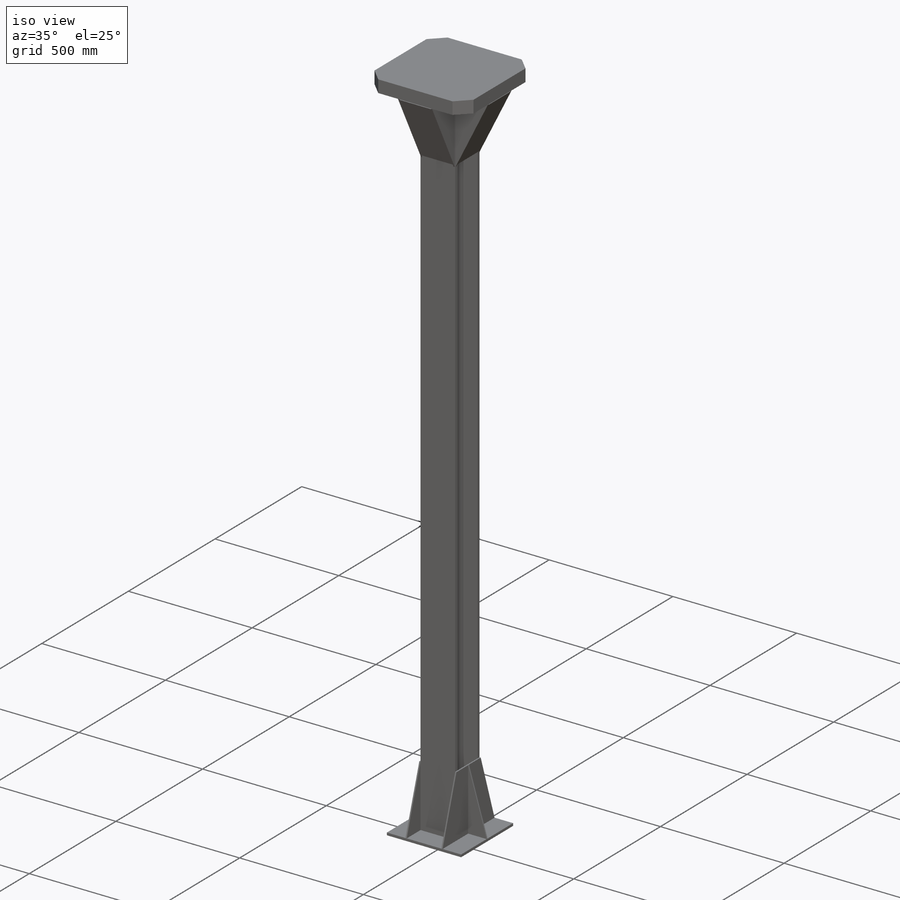
[diagram: iso view]
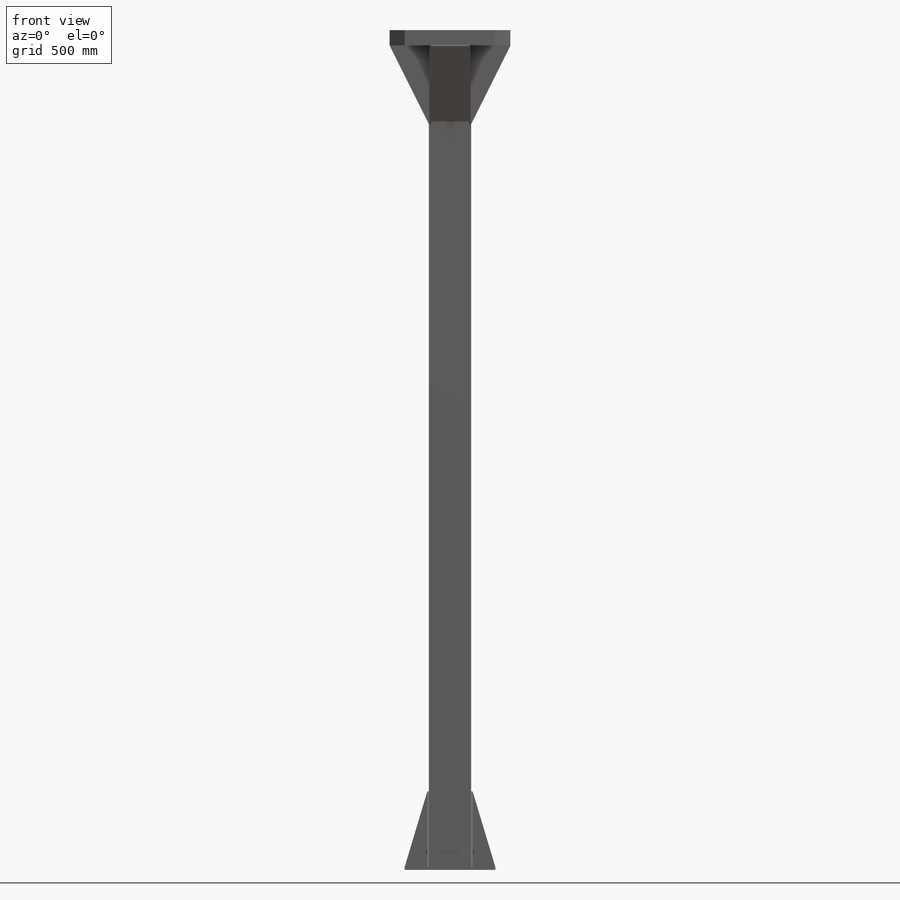
[diagram: front view]
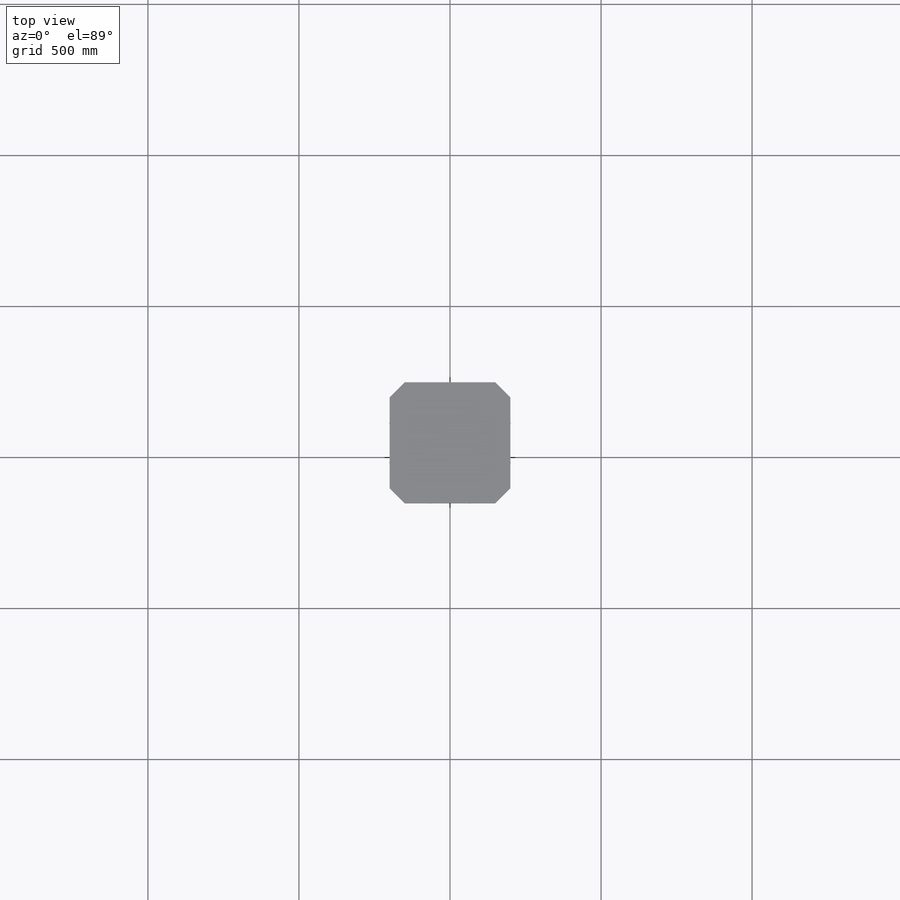
[diagram: top view]
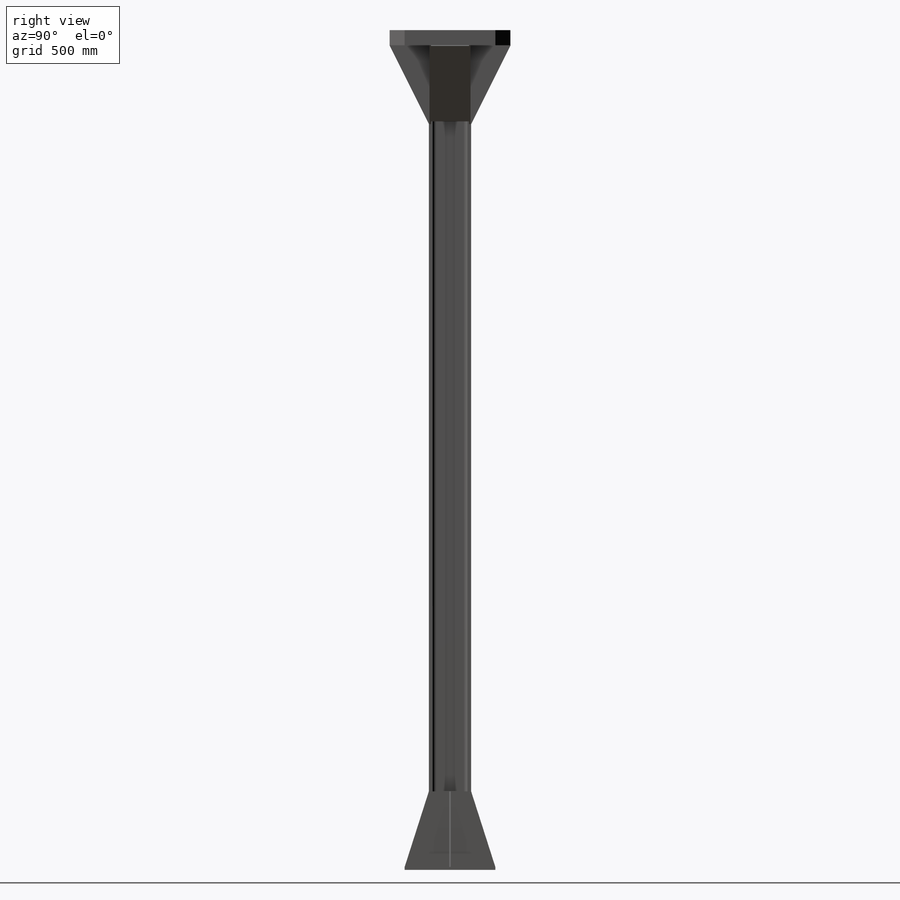
[diagram: right view]
SOLIDWORKS PART (.sldprt)
format: sldprt  version: not decoded by parser v0  size: 363,008 bytes
history: native  units: mm
features: plane x15, sketch x8, extrude x5, mirror x3, material x1, chamfer x1, pattern_circular x1 + 6 further entries (+10 scaffold rows collapsed)
feature tree (50):
  scaffold x10  (default folders/planes/origin — collapsed)
  material  "1.0037 (S235JR)"
  "Element listy elementów ciętych2"
  "Element listy elementów ciętych3"
  "Element listy elementów ciętych4"
  "Element listy elementów ciętych5"
  "Element listy elementów ciętych6"
  "Element listy elementów ciętych7"
  plane  "Płaszczyzna przednia"
  plane  "Płaszczyzna górna"
  plane  "Płaszczyzna prawa"
  sketch  "Szkic1"  dims[D1=2720.0mm]
  plane  "Płaszczyzna1"
  sketch  "Sketch11"  dims[c1.D5=6.35mm c1.D4=~6.349995mm c1.Ri=12.0mm c1.D1=~103.123911mm c1.D2=6.35mm c1.D3=44.45mm c2.D4=12.7mm c2.D2=~105.663908mm c2.D3=~7.111994mm c2.D5=~8.762992mm c2.D6=6.35mm c2.Tw=7.0mm c2.D1=~3.555997mm c2.Bf=140.0mm c2.Depth=140.0mm c2.Tf=12.0mm c3.D2=11.303mm c3.D3=~51.561955mm c3.D1=5.6515mm]
  sketch  "Szkic4"  dims[D1=300.0mm D2=300.0mm]
  extrude  "Dodanie-wyciągnięcie1"  Depth=10mm
  sketch  "Szkic6"  dims[D1=400.0mm D2=400.0mm]
  extrude  "Dodanie-wyciągnięcie2"  Depth=25mm
  chamfer  "Sfazowanie1"  Distance=50mm Angle=45deg
  plane  "Płaszczyzna2"  Offset=0mm
  mirror  "Lustro1"
  plane  "Płaszczyzna3"  Offset=0mm
  plane  "Płaszczyzna7"  Offset=0mm
  plane  "Płaszczyzna8"  Offset=7mm
  sketch  "Szkic10"  dims[c1.D1=5.0mm c1.D2=250.0mm c2.D1=126.0mm c2.D5=5.0mm c2.D6=1.0mm c2.D7=5.0mm]
  plane  "Płaszczyzna10"  Offset=0mm
  sketch  "Szkic12"
  extrude  "Dodanie-wyciągnięcie4"  Depth=5mm
  plane  "Płaszczyzna11"
  mirror  "Lustro2"
  plane  "Płaszczyzna12"
  plane  "Płaszczyzna13"  Offset=2mm
  pattern_circular  "Szyk kołowy1"  Count=4 Angle=90deg
  plane  "Płaszczyzna15"  Offset=0mm
  sketch  "Szkic18"  dims[D1=250.0mm]
  extrude  "Dodanie-wyciągnięcie5"  Depth=5mm
  plane  "Płaszczyzna16"
  sketch  "Szkic20"
  extrude  "Dodanie-wyciągnięcie6"  Depth=5mm
  plane  "Płaszczyzna17"
  mirror  "Lustro4"
decode coverage: 13 of 18 modeling features carry decoded parameters; 6 rows unclassified (native names shown)
note: ~ marks probable driven/reference dimensions
note: suppression state not decoded; provenance and decode notes live in map.json
